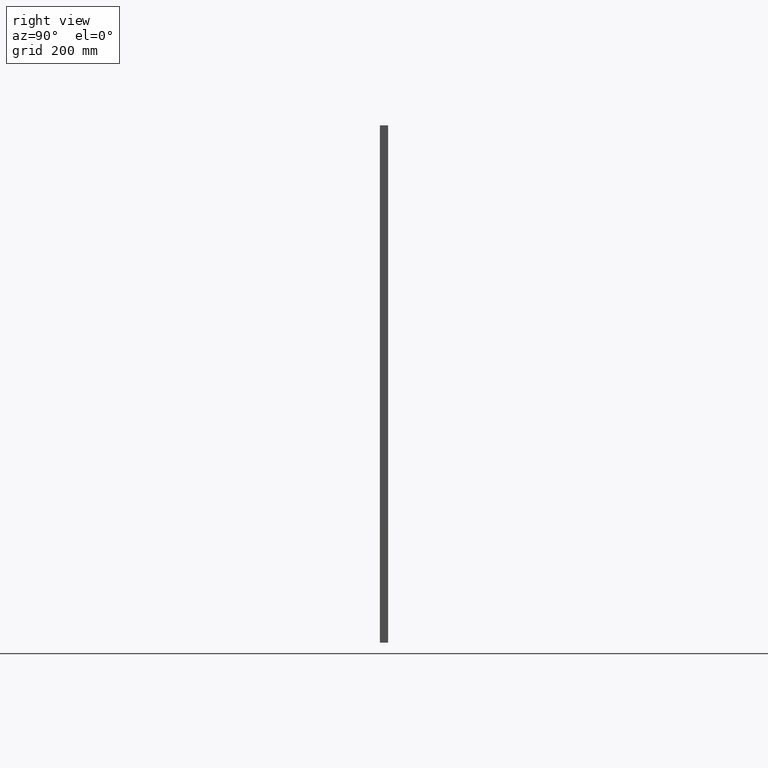
[diagram: clean part render]
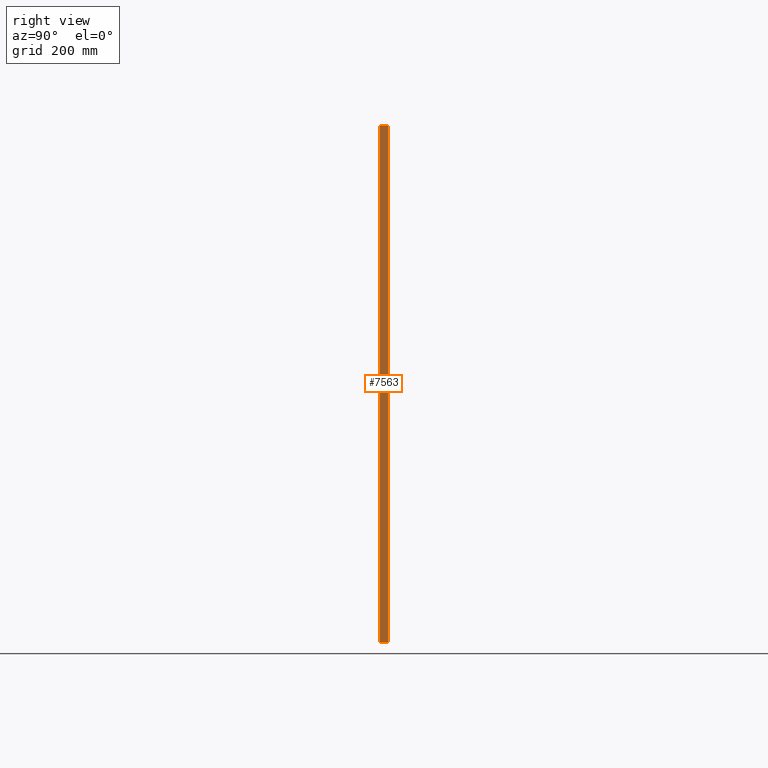
[diagram: same view with one face highlighted and labeled with its STEP entity id]
A machine part, right view. The second image highlights one B-rep face of the part: STEP entity #7563.
In plain terms, the highlighted planar face has unit normal (-1, 0, 0).
Its self-contained STEP definition (entity closure, byte-faithful):
#1854 = EDGE_CURVE ( 'NONE', #17085, #16093, #3328, .T. ) ;
#2424 = VECTOR ( 'NONE', #58356, 1000.000000000000000 ) ;
#3328 = LINE ( 'NONE', #17775, #54981 ) ;
#7262 = FACE_OUTER_BOUND ( 'NONE', #13339, .T. ) ;
#7563 = ADVANCED_FACE ( 'NONE', ( #7262 ), #18011, .F. ) ;
#8507 = DIRECTION ( 'NONE',  ( -0.000000000000000000, -0.000000000000000000, -1.000000000000000000 ) ) ;
#9958 = VECTOR ( 'NONE', #8507, 1000.000000000000000 ) ;
#12237 = CARTESIAN_POINT ( 'NONE',  ( 600.0000000000000000, 19.00000000000000000, -599.9999999999998863 ) ) ;
#12619 = DIRECTION ( 'NONE',  ( 0.000000000000000000, 0.000000000000000000, 1.000000000000000000 ) ) ;
#13339 = EDGE_LOOP ( 'NONE', ( #69032, #75563, #62127, #61767 ) ) ;
#13427 = CARTESIAN_POINT ( 'NONE',  ( 600.0000000000000000, 19.00000000000000000, 600.0000000000001137 ) ) ;
#14487 = LINE ( 'NONE', #50511, #29298 ) ;
#16093 = VERTEX_POINT ( 'NONE', #50293 ) ;
#17085 = VERTEX_POINT ( 'NONE', #72023 ) ;
#17775 = CARTESIAN_POINT ( 'NONE',  ( 600.0000000000000000, 19.00000000000000000, -599.9999999999998863 ) ) ;
#18011 = PLANE ( 'NONE',  #47917 ) ;
#18395 = DIRECTION ( 'NONE',  ( -1.000000000000000000, 0.000000000000000000, 0.000000000000000000 ) ) ;
#21184 = CARTESIAN_POINT ( 'NONE',  ( 599.9999999999998863, 0.000000000000000000, 600.0000000000001137 ) ) ;
#21627 = EDGE_CURVE ( 'NONE', #59343, #17085, #14487, .T. ) ;
#24878 = EDGE_CURVE ( 'NONE', #70573, #59343, #34989, .T. ) ;
#29298 = VECTOR ( 'NONE', #75063, 1000.000000000000000 ) ;
#33258 = DIRECTION ( 'NONE',  ( -0.000000000000000000, -1.000000000000000000, 0.000000000000000000 ) ) ;
#34989 = LINE ( 'NONE', #70632, #2424 ) ;
#47917 = AXIS2_PLACEMENT_3D ( 'NONE', #12237, #18395, #12619 ) ;
#50293 = CARTESIAN_POINT ( 'NONE',  ( 600.0000000000000000, 0.000000000000000000, -599.9999999999998863 ) ) ;
#50511 = CARTESIAN_POINT ( 'NONE',  ( 600.0000000000000000, 19.00000000000000000, 0.000000000000000000 ) ) ;
#54359 = EDGE_CURVE ( 'NONE', #70573, #16093, #56033, .T. ) ;
#54981 = VECTOR ( 'NONE', #33258, 1000.000000000000000 ) ;
#56033 = LINE ( 'NONE', #62184, #9958 ) ;
#58356 = DIRECTION ( 'NONE',  ( 0.000000000000000000, 1.000000000000000000, -0.000000000000000000 ) ) ;
#59343 = VERTEX_POINT ( 'NONE', #13427 ) ;
#61767 = ORIENTED_EDGE ( 'NONE', *, *, #54359, .T. ) ;
#62127 = ORIENTED_EDGE ( 'NONE', *, *, #24878, .F. ) ;
#62184 = CARTESIAN_POINT ( 'NONE',  ( 600.0000000000000000, 0.000000000000000000, -599.9999999999998863 ) ) ;
#69032 = ORIENTED_EDGE ( 'NONE', *, *, #1854, .F. ) ;
#70573 = VERTEX_POINT ( 'NONE', #21184 ) ;
#70632 = CARTESIAN_POINT ( 'NONE',  ( 600.0000000000000000, 19.00000000000000000, 600.0000000000001137 ) ) ;
#72023 = CARTESIAN_POINT ( 'NONE',  ( 600.0000000000000000, 19.00000000000000000, -599.9999999999998863 ) ) ;
#75063 = DIRECTION ( 'NONE',  ( -0.000000000000000000, 0.000000000000000000, -1.000000000000000000 ) ) ;
#75563 = ORIENTED_EDGE ( 'NONE', *, *, #21627, .F. ) ;